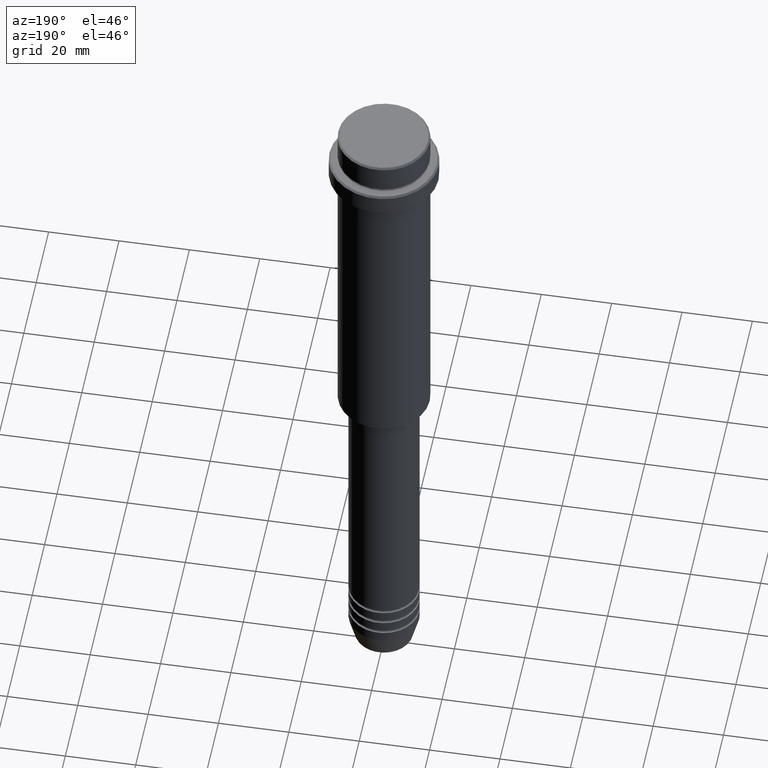
[diagram: clean part render]
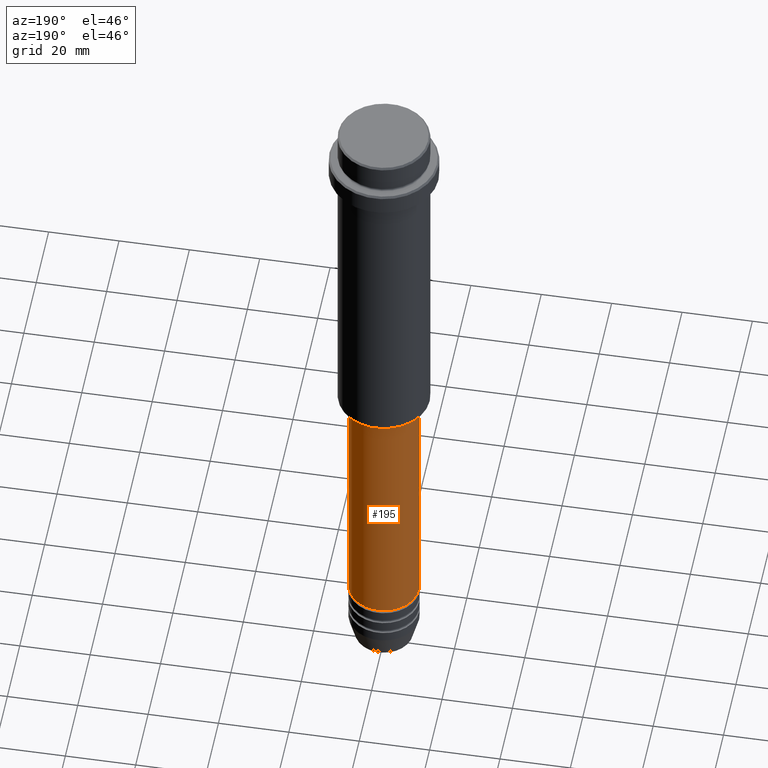
[diagram: same view with one face highlighted and labeled with its STEP entity id]
A machine part, auxiliary view. The second image highlights one B-rep face of the part: STEP entity #195.
In plain terms, the highlighted cylindrical surface (edge-blend (fillet) strip) has radius 10 mm, axis along (-0, -0, 1).
Its self-contained STEP definition (entity closure, byte-faithful):
#28 = VERTEX_POINT ( 'NONE', #690 ) ;
#57 = DIRECTION ( 'NONE',  ( 1.000000000000000000, 0.000000000000000000, 0.000000000000000000 ) ) ;
#59 = DIRECTION ( 'NONE',  ( -0.000000000000000000, -0.000000000000000000, 1.000000000000000000 ) ) ;
#71 = CYLINDRICAL_SURFACE ( 'NONE', #658, 10.00000000000000178 ) ;
#178 = ORIENTED_EDGE ( 'NONE', *, *, #787, .F. ) ;
#195 = ADVANCED_FACE ( 'NONE', ( #616 ), #71, .T. ) ;
#267 = VECTOR ( 'NONE', #59, 1000.000000000000000 ) ;
#355 = AXIS2_PLACEMENT_3D ( 'NONE', #1143, #597, #57 ) ;
#396 = DIRECTION ( 'NONE',  ( -0.000000000000000000, -0.000000000000000000, 1.000000000000000000 ) ) ;
#419 = EDGE_CURVE ( 'NONE', #1242, #852, #1128, .T. ) ;
#435 = ORIENTED_EDGE ( 'NONE', *, *, #419, .F. ) ;
#451 = CIRCLE ( 'NONE', #355, 10.00000000000000178 ) ;
#498 = CIRCLE ( 'NONE', #942, 10.00000000000000000 ) ;
#555 = LINE ( 'NONE', #999, #1144 ) ;
#563 = DIRECTION ( 'NONE',  ( 1.000000000000000000, 0.000000000000000000, 0.000000000000000000 ) ) ;
#597 = DIRECTION ( 'NONE',  ( -0.000000000000000000, -0.000000000000000000, 1.000000000000000000 ) ) ;
#608 = EDGE_LOOP ( 'NONE', ( #737, #817, #178, #435 ) ) ;
#616 = FACE_OUTER_BOUND ( 'NONE', #608, .T. ) ;
#658 = AXIS2_PLACEMENT_3D ( 'NONE', #954, #396, #840 ) ;
#690 = CARTESIAN_POINT ( 'NONE',  ( -10.00000000000000178, 1.224646799147353454E-15, -106.0000000000000142 ) ) ;
#694 = EDGE_CURVE ( 'NONE', #1242, #1307, #498, .T. ) ;
#722 = CARTESIAN_POINT ( 'NONE',  ( 10.00000000000000178, 0.000000000000000000, 0.000000000000000000 ) ) ;
#737 = ORIENTED_EDGE ( 'NONE', *, *, #694, .T. ) ;
#787 = EDGE_CURVE ( 'NONE', #852, #28, #451, .T. ) ;
#812 = CARTESIAN_POINT ( 'NONE',  ( -10.00000000000000000, 1.224646799147353256E-15, -180.9999999999998863 ) ) ;
#817 = ORIENTED_EDGE ( 'NONE', *, *, #1150, .T. ) ;
#840 = DIRECTION ( 'NONE',  ( 1.000000000000000000, 0.000000000000000000, 0.000000000000000000 ) ) ;
#852 = VERTEX_POINT ( 'NONE', #1373 ) ;
#872 = DIRECTION ( 'NONE',  ( -0.000000000000000000, -0.000000000000000000, 1.000000000000000000 ) ) ;
#942 = AXIS2_PLACEMENT_3D ( 'NONE', #1310, #1333, #563 ) ;
#954 = CARTESIAN_POINT ( 'NONE',  ( 0.000000000000000000, 0.000000000000000000, 0.000000000000000000 ) ) ;
#999 = CARTESIAN_POINT ( 'NONE',  ( -10.00000000000000178, 1.224646799147353454E-15, 0.000000000000000000 ) ) ;
#1026 = CARTESIAN_POINT ( 'NONE',  ( 10.00000000000000000, 0.000000000000000000, -180.9999999999998863 ) ) ;
#1128 = LINE ( 'NONE', #722, #267 ) ;
#1143 = CARTESIAN_POINT ( 'NONE',  ( 0.000000000000000000, 0.000000000000000000, -106.0000000000000142 ) ) ;
#1144 = VECTOR ( 'NONE', #872, 1000.000000000000000 ) ;
#1150 = EDGE_CURVE ( 'NONE', #1307, #28, #555, .T. ) ;
#1242 = VERTEX_POINT ( 'NONE', #1026 ) ;
#1307 = VERTEX_POINT ( 'NONE', #812 ) ;
#1310 = CARTESIAN_POINT ( 'NONE',  ( 0.000000000000000000, 0.000000000000000000, -180.9999999999998863 ) ) ;
#1333 = DIRECTION ( 'NONE',  ( -0.000000000000000000, -0.000000000000000000, 1.000000000000000000 ) ) ;
#1373 = CARTESIAN_POINT ( 'NONE',  ( 10.00000000000000178, 0.000000000000000000, -106.0000000000000142 ) ) ;